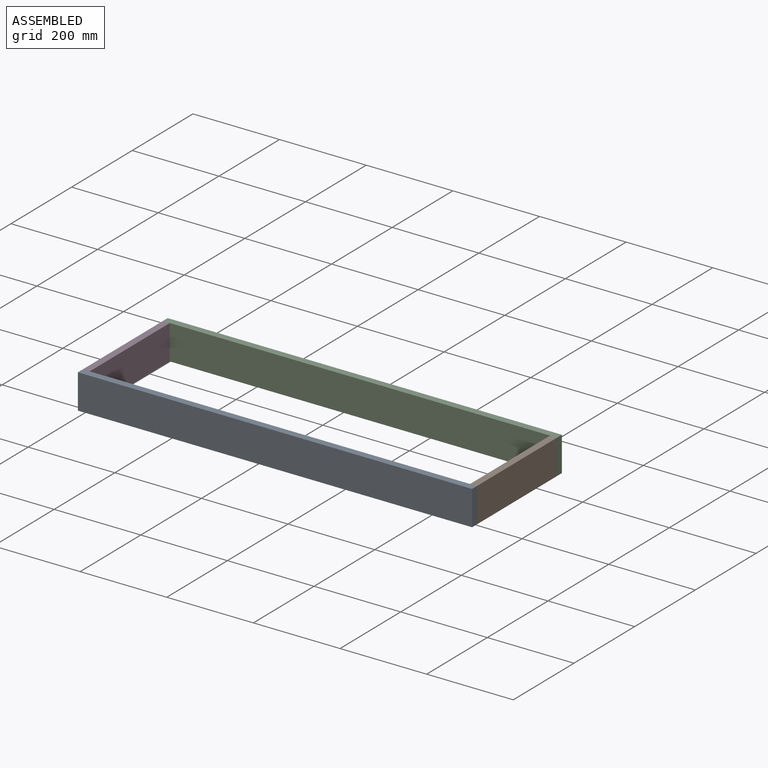
[diagram: assembled view]
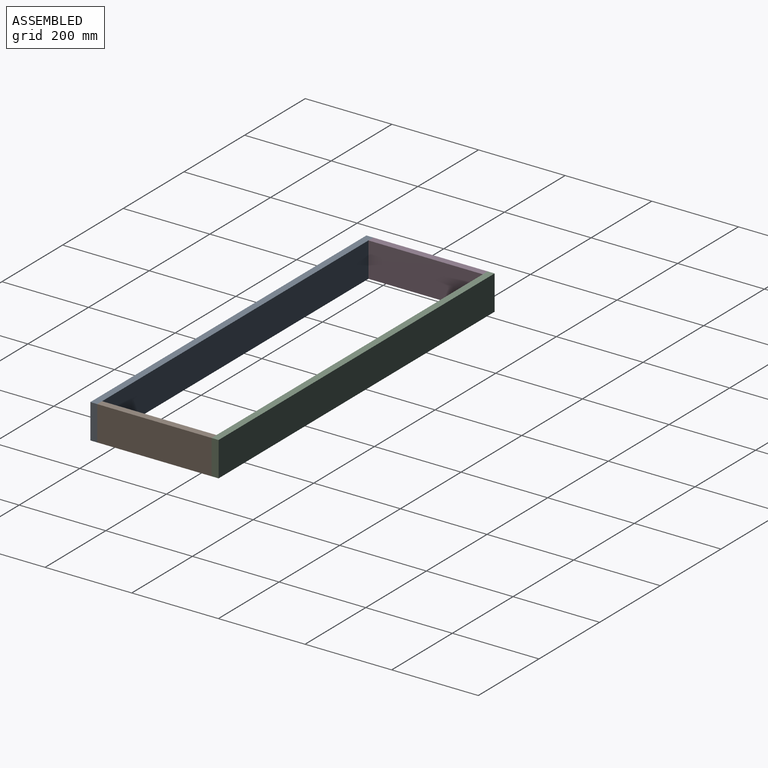
[diagram: assembled view, second angle]
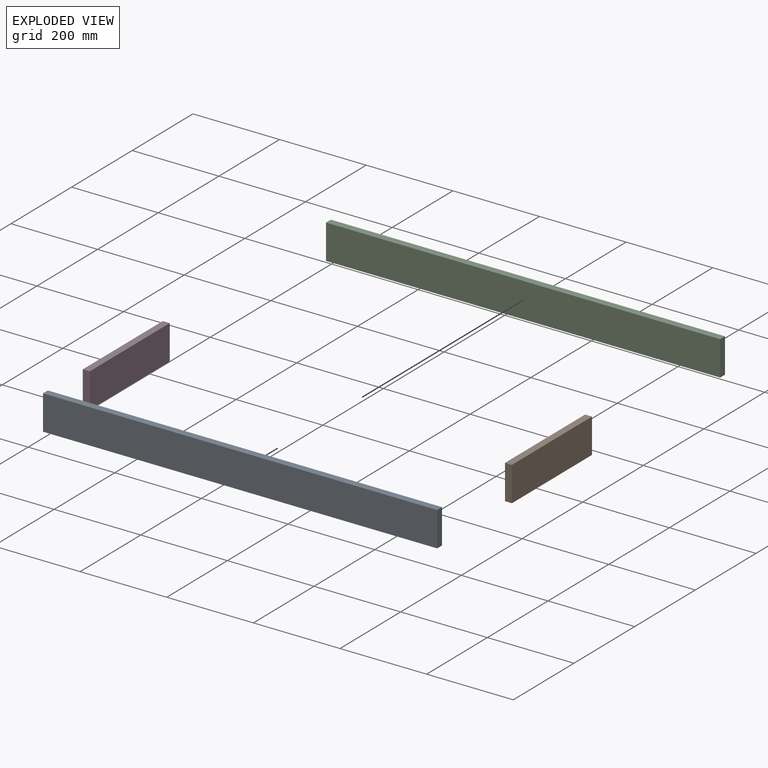
[diagram: exploded view]
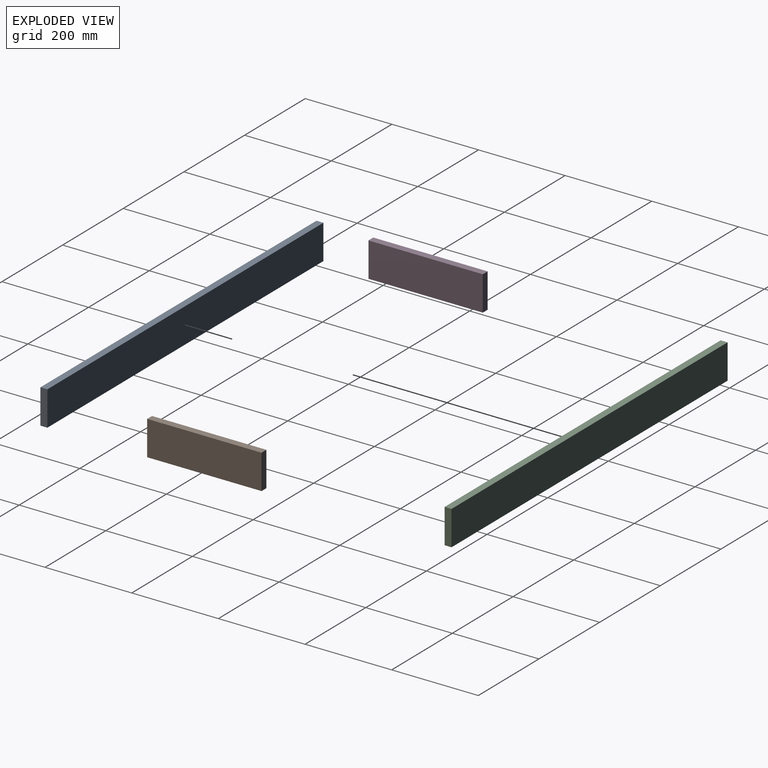
[diagram: exploded view, second angle]
ASSEMBLY  parts=4 mates=4
PART A: 6 faces, bbox 910x16x80 mm
  f0: plane 910x16mm, normal (0,0,1), area 14560mm2, adj f1,f3,f4,f5
  f1: plane 80x16mm, normal (-1,0,0), area 1280mm2, adj f0,f2,f4,f5
  f2: plane 910x16mm, normal (0,0,-1), area 14560mm2, adj f1,f3,f4,f5
  f3: plane 80x16mm, normal (1,0,0), area 1280mm2, adj f0,f2,f4,f5
  f4: plane 910x80mm, normal (0,-1,0), area 72800mm2, adj f0,f1,f2,f3
  f5: plane 910x80mm, normal (0,1,0), area 72800mm2, adj f0,f1,f2,f3
PART B: 6 faces, bbox 16x264x80 mm
  f0: plane 264x16mm, normal (0,0,1), area 4224mm2, adj f1,f3,f4,f5
  f1: plane 80x16mm, normal (0,1,0), area 1280mm2, adj f0,f2,f4,f5
  f2: plane 264x16mm, normal (0,0,-1), area 4224mm2, adj f1,f3,f4,f5
  f3: plane 80x16mm, normal (0,-1,0), area 1280mm2, adj f0,f2,f4,f5
  f4: plane 264x80mm, normal (-1,0,0), area 21120mm2, adj f0,f1,f2,f3
  f5: plane 264x80mm, normal (1,0,0), area 21120mm2, adj f0,f1,f2,f3
PART C: same geometry as A
PART D: same geometry as B
PLACE A rot(axis=(1,0,0),180deg) t=(794.09,-237.75,-185.97)mm fixed
PLACE B rot(axis=(0,0,1),180deg) t=(1566.42,42.25,-197.12)mm
PLACE C t=(794.09,58.25,-197.12)mm
PLACE D t=(546.09,-221.75,-197.12)mm
MATE fastened D.f3 <-> A.f4  axis (0,-1,0) through (601.26,-221.75,-191.54)mm
MATE fastened B.f3 <-> C.f4  axis (0,1,0) through (1511.26,42.25,-191.54)mm
MATE fastened C.f4 <-> D.f1  axis (0,-1,0) through (601.26,42.25,-191.54)mm
MATE fastened B.f1 <-> A.f4  axis (0,-1,0) through (1511.26,-221.75,-191.54)mm
